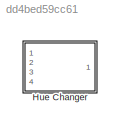
MODEL slx_dd4bed59cc61
KIND library
CONFIG AbsTol = auto
CONFIG EnableMultiTasking = off
CONFIG FixedStep = auto
CONFIG MaxStep = auto
CONFIG MinStep = auto
CONFIG RelTol = 1e-3
CONFIG SampleTimeConstraint = Unconstrained
CONFIG Solver = VariableStepAuto
CONFIG SolverName = VariableStepAuto
CONFIG StartTime = 0.0
CONFIG StopTime = 10.0
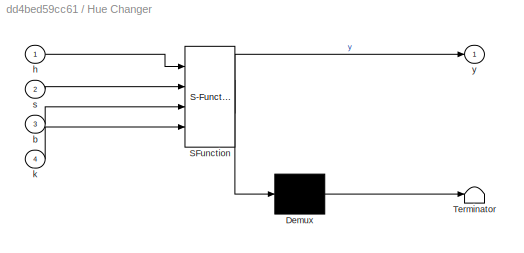
BLOCK [SubSystem] Hue Changer
  ErrorFcn = Stateflow.Translate.translate
  PermitHierarchicalResolution = ExplicitOnly
  Ports = [4, 1]
  RequestExecContextInheritance = off
  SFBlockType = MATLAB Function
  TreatAsAtomicUnit = on
  Variant = off
BLOCK [Demux] Hue Changer/ Demux 
  Outputs = 1
  Ports = [1, 1]
BLOCK [S-Function] Hue Changer/ SFunction 
  EnableBusSupport = on
  FunctionName = sf_sfun
  PortCounts = [4 2]
  Ports = [4, 2]
  SFcnIsStateOwnerBlock = off
  SFunctionDeploymentMode = off
  Tag = Stateflow S-Function lifx 2
BLOCK [Terminator] Hue Changer/ Terminator 
BLOCK [Inport] Hue Changer/b
  IconDisplay = Port number
  Port = 3
BLOCK [Inport] Hue Changer/h
  IconDisplay = Port number
BLOCK [Inport] Hue Changer/k
  IconDisplay = Port number
  Port = 4
BLOCK [Inport] Hue Changer/s
  IconDisplay = Port number
  Port = 2
BLOCK [Outport] Hue Changer/y
  IconDisplay = Port number
CHART Hue Changer states=1 transitions=1
  STATE_LABEL 'eML_blk_kernel()'
  STATE_LABEL "SCRIPT:\nfunction y = fcn(h,s,b,k)\n%#codegen\n%%\ndec_code = [49;0;0;52;0;0;0;0;0;0;0;0;0;0;0;0;0;0;0;0;0;0;0;0;0;0;0;0;0;0;0;0;102;0;0;0;0;85;85;255;255;255;255;191;218;0;0;0;0];\n%%\n%%HUE \nhue = h/360 * 65535; %hue conversion formula, from degrees scale to LIFX scale\nhue = floor(hue);\nhue_hex = dec2hex(hue);\n\nif (length(hue_hex) == 1)\n    hue_arr = ['0',hue_hex(1)];\n    hue_arr = ['00',hue_arr(1:2)]...<+2435ch>"
